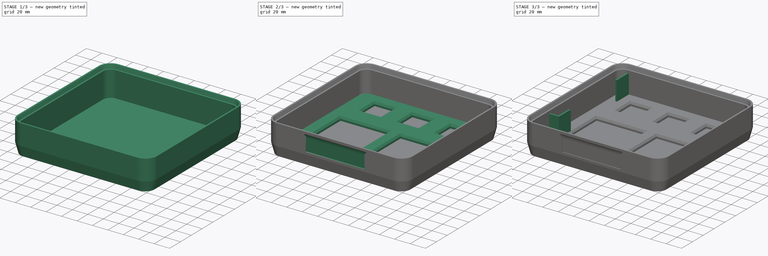
[diagram: build sequence overview — one tinted view per stage of 3, left to right]
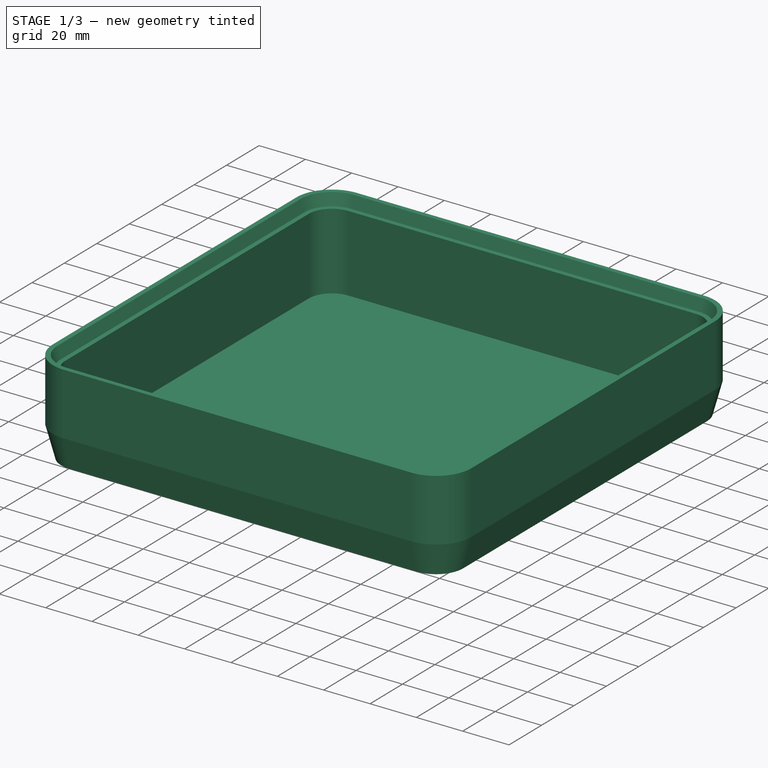
[diagram: stage 1 of 3 — iso view after this stage's code; geometry added in this stage tinted green]
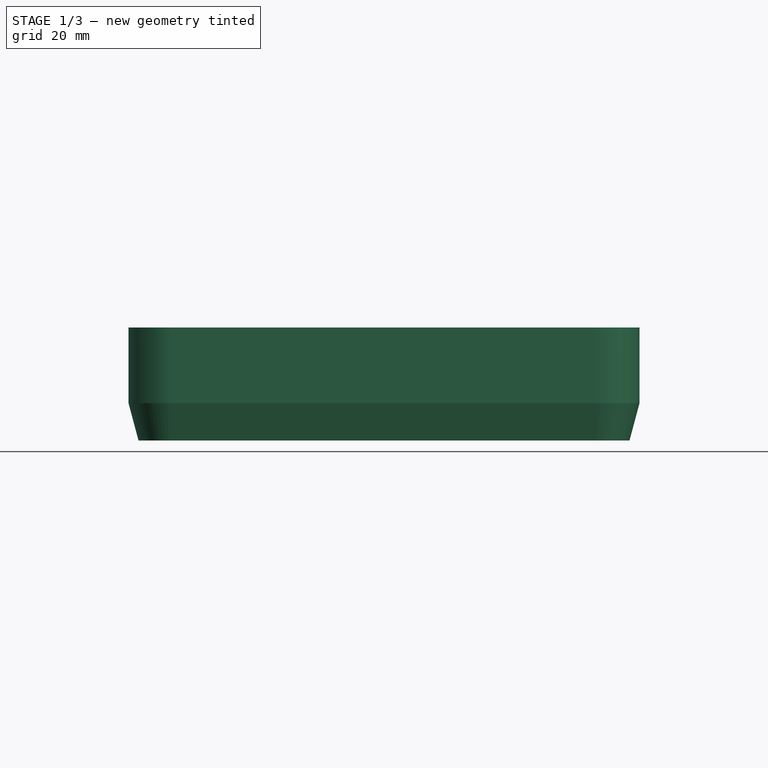
[diagram: stage 1 of 3 — front view after this stage's code; geometry added in this stage tinted green]
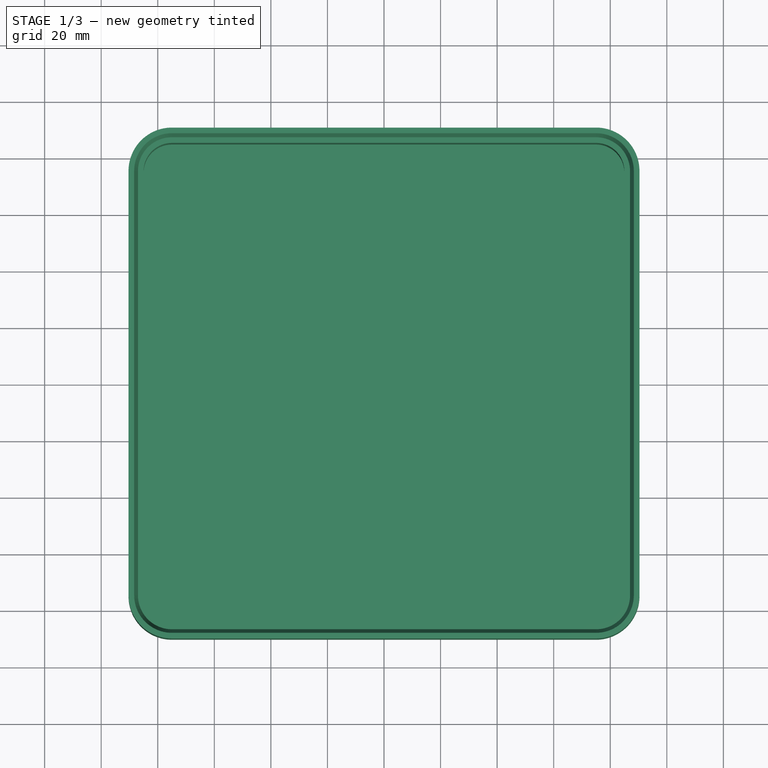
[diagram: stage 1 of 3 — top view after this stage's code; geometry added in this stage tinted green]
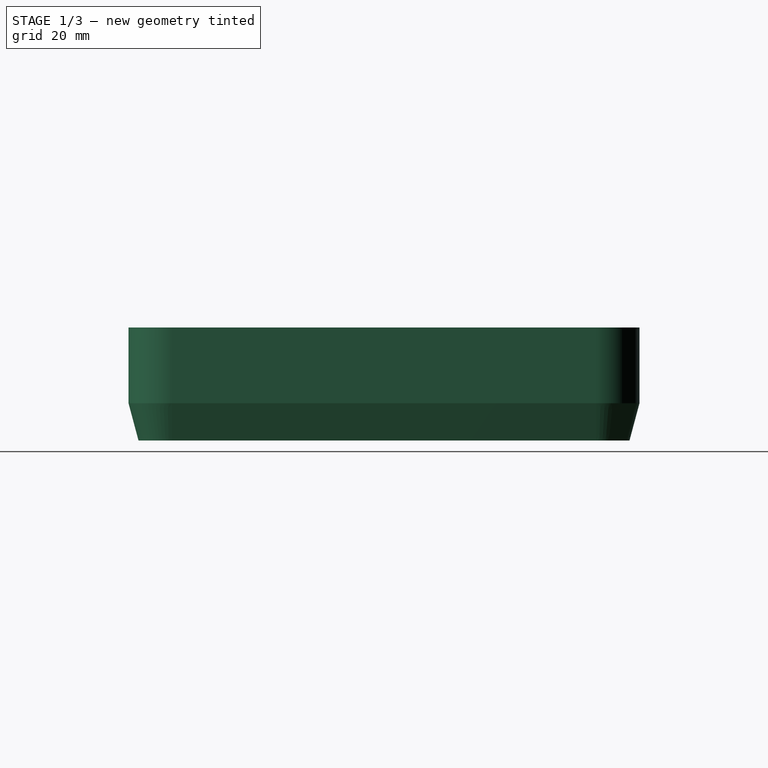
[diagram: stage 1 of 3 — right view after this stage's code; geometry added in this stage tinted green]
FCSTD DOCUMENT  (FreeCAD 1.0R39319 (Git))
Label: Box-slides
License: All rights reserved
LicenseURL: https://en.wikipedia.org/wiki/All_rights_reserved
objects: Sketcher::SketchObject×7, PartDesign::Pad×3, PartDesign::AdditivePipe×1, PartDesign::Chamfer×1, PartDesign::SubtractivePipe×1, PartDesign::Pocket×1, PartDesign::Body×1, Spreadsheet::Sheet×1
note: 36 computed .brp shape members not serialized (recipe doc carries the construction recipe); baked Part::Feature solids carry a one-line shape summary decoded from their .brp

FEATURE [Sketcher::SketchObject] Sketch
  ArcFitTolerance = 1e-06
  AttachmentSupport = -> [XZ_Plane]
  FullyConstrained = true
  MakeInternals = false
  MapMode = 5
  Placement = pos=(0,0,0) rot=(1,0,0;1.5708rad)
  sketch-geometry (8):
    g0: LineSegment StartX=85 StartY=0 StartZ=0 EndX=86.8 EndY=0 EndZ=0
    g1: LineSegment StartX=86.8 StartY=0 StartZ=0 EndX=90.3397 EndY=13.2105 EndZ=0
    g2: LineSegment StartX=90.3397 StartY=13.2105 StartZ=0 EndX=90.3397 EndY=40 EndZ=0
    g3: LineSegment StartX=90.3397 StartY=40 StartZ=0 EndX=88.3397 EndY=40 EndZ=0
    g4: LineSegment StartX=88.3397 StartY=40 StartZ=0 EndX=87 EndY=35 EndZ=0
    g5: LineSegment StartX=87 StartY=35 StartZ=0 EndX=85 EndY=35 EndZ=0
    g6: LineSegment StartX=85 StartY=35 StartZ=0 EndX=85 EndY=0 EndZ=0
    g7: GeomPoint X=90.3397 Y=26.6053 Z=0
  constraints (23):
    c: PointOnObject(g0,g-1)
    c: Coincident(g0,g1)
    c: Coincident(g1,g2)
    c: Vertical(g2)
    c: Coincident(g2,g3)
    c: Horizontal(g3)
    c: Coincident(g3,g4)
    c: Coincident(g4,g5)
    c: Horizontal(g5)
    c: Coincident(g5,g6)
    c: Vertical(g6)
    c: Horizontal(g0)
    c: Coincident(g0,g6)
    c: Parallel(g1,g4)
    c: DistanceY(g4,g3) = 5
    c: Angle(g-1,g1) = 1.309
    c: Equal(g3,g5)
    c: DistanceX(g3,g3) = 2
    c: DistanceY(g6,g6) = 35
    c: DistanceX(g0) = 85
    c: DistanceX(g0,g0) = 1.8
    c: Symmetric(g2,g2,g7)
    c: DistanceY(g7) = 26.6053
FEATURE [Sketcher::SketchObject] Sketch001
  ArcFitTolerance = 1e-06
  AttachmentSupport = -> [XY_Plane]
  FullyConstrained = false
  MakeInternals = false
  MapMode = 5
  sketch-geometry (20):
    g0: Circle [constr] CenterX=20 CenterY=20 CenterZ=0 NormalX=0 NormalY=0 NormalZ=1 AngleXU=0 Radius=11.75
    g1: Circle [constr] CenterX=20 CenterY=20 CenterZ=0 NormalX=0 NormalY=0 NormalZ=1 AngleXU=0 Radius=20
    g2: Circle [constr] CenterX=60 CenterY=60 CenterZ=0 NormalX=0 NormalY=0 NormalZ=1 AngleXU=0 Radius=11.75
    g3: Circle [constr] CenterX=60 CenterY=60 CenterZ=0 NormalX=0 NormalY=0 NormalZ=1 AngleXU=0 Radius=20
    g4: Circle [constr] CenterX=20 CenterY=60 CenterZ=0 NormalX=0 NormalY=0 NormalZ=1 AngleXU=0 Radius=11.75
    g5: Circle [constr] CenterX=20 CenterY=60 CenterZ=0 NormalX=0 NormalY=0 NormalZ=1 AngleXU=0 Radius=20
    g6: Circle [constr] CenterX=60 CenterY=20 CenterZ=0 NormalX=0 NormalY=0 NormalZ=1 AngleXU=0 Radius=11.75
    g7: Circle [constr] CenterX=60 CenterY=20 CenterZ=0 NormalX=0 NormalY=0 NormalZ=1 AngleXU=0 Radius=20
    g8: LineSegment StartX=-85 StartY=75 StartZ=0 EndX=-85 EndY=-75 EndZ=0
    g9: LineSegment StartX=-75 StartY=-85 StartZ=0 EndX=75 EndY=-85 EndZ=0
    g10: LineSegment StartX=85 StartY=-75 StartZ=0 EndX=85 EndY=75 EndZ=0
    g11: LineSegment StartX=75 StartY=85 StartZ=0 EndX=-75 EndY=85 EndZ=0
    g12: ArcOfCircle CenterX=-75 CenterY=75 CenterZ=0 NormalX=0 NormalY=0 NormalZ=1 AngleXU=0 Radius=10 StartAngle=1.5708 EndAngle=3.14159
    g13: GeomPoint [constr] X=-85 Y=85 Z=0
    g14: ArcOfCircle CenterX=75 CenterY=75 CenterZ=0 NormalX=0 NormalY=0 NormalZ=1 AngleXU=0 Radius=10 StartAngle=0 EndAngle=1.5708
    g15: GeomPoint [constr] X=85 Y=85 Z=0
    g16: ArcOfCircle CenterX=75 CenterY=-75 CenterZ=0 NormalX=0 NormalY=0 NormalZ=1 AngleXU=0 Radius=10 StartAngle=4.71239 EndAngle=6.28319
    g17: GeomPoint [constr] X=85 Y=-85 Z=0
    g18: ArcOfCircle CenterX=-75 CenterY=-75 CenterZ=0 NormalX=0 NormalY=0 NormalZ=1 AngleXU=0 Radius=10 StartAngle=3.14159 EndAngle=4.71239
    g19: GeomPoint [constr] X=-85 Y=-85 Z=0
  constraints (45):
    c: Diameter(g0) = 23.5
    c: Coincident(g1,g0)
    c: Diameter(g1) = 40
    c: Coincident(g3,g2)
    c: Coincident(g5,g4)
    c: Tangent(g5,g1)
    c: Tangent(g5,g3)
    c: Tangent(g3,g7)
    c: Tangent(g1,g7)
    c: Vertical(g4,g0)
    c: Horizontal(g4,g2)
    c: Equal(g3,g7)
    c: Equal(g7,g1)
    c: Equal(g1,g5)
    c: Equal(g6,g2)
    c: Equal(g2,g4)
    c: Equal(g4,g0)
    c: Tangent(g1,g-2)
    c: Vertical(g8)
    c: Vertical(g10)
    c: Horizontal(g9)
    c: Horizontal(g11)
    c: Symmetric(g13,g17,g-1)
    c: PointOnObject(g13,g8)
    c: PointOnObject(g13,g11)
    c: Tangent(g8,g12) = -1.5708
    c: Tangent(g11,g12) = -1.5708
    c: PointOnObject(g15,g11)
    c: PointOnObject(g15,g10)
    c: Tangent(g11,g14) = -1.5708
    c: Tangent(g10,g14) = -1.5708
    c: PointOnObject(g17,g10)
    c: PointOnObject(g17,g9)
    c: Tangent(g10,g16) = -1.5708
    c: Tangent(g9,g16) = -1.5708
    c: PointOnObject(g19,g9)
    c: PointOnObject(g19,g8)
    c: Tangent(g9,g18) = -1.5708
    c: Tangent(g8,g18) = -1.5708
    c: Equal(g14,g12)
    c: Equal(g12,g18)
    c: Equal(g18,g16)
    c: Radius(g14) = 10
    c: Equal(g10,g11)
    c: Distance(g-1,g10) = 85
FEATURE [PartDesign::AdditivePipe] AdditivePipe  label="seite"
  AuxilleryCurvelinear = true
  AuxillerySpineTangent = false
  Binormal = (0,0,0)
  Mode = 0
  Placement = pos=(0,0,0) rot=(1,0,0;1.5708rad)
  Profile = -> Sketch
  Refine = true
  Spine = -> Sketch001
  SpineTangent = false
  Suppressed = false
  Transformation = 0
  Transition = 0
FEATURE [Sketcher::SketchObject] Sketch002
  ArcFitTolerance = 1e-06
  AttachmentOffset = pos=(0,0,2) rot=(0,0,1;0rad)
  AttachmentSupport = -> [XY_Plane]
  FullyConstrained = true
  MakeInternals = false
  MapMode = 5
  Placement = pos=(0,0,2) rot=(0,0,1;0rad)
  sketch-geometry (41):
    g0: LineSegment StartX=-85 StartY=75 StartZ=0 EndX=-85 EndY=-75 EndZ=0
    g1: LineSegment StartX=-75 StartY=-85 StartZ=0 EndX=75 EndY=-85 EndZ=0
    g2: LineSegment StartX=85 StartY=-75 StartZ=0 EndX=85 EndY=75 EndZ=0
    g3: LineSegment StartX=75 StartY=85 StartZ=0 EndX=-75 EndY=85 EndZ=0
    g4: ArcOfCircle CenterX=-75 CenterY=75 CenterZ=0 NormalX=0 NormalY=0 NormalZ=1 AngleXU=0 Radius=10 StartAngle=1.5708 EndAngle=3.14159
    g5: GeomPoint [constr] X=-85 Y=85 Z=0
    g6: ArcOfCircle CenterX=75 CenterY=75 CenterZ=0 NormalX=0 NormalY=0 NormalZ=1 AngleXU=0 Radius=10 StartAngle=3e-16 EndAngle=1.5708
    g7: GeomPoint [constr] X=85 Y=85 Z=0
    g8: ArcOfCircle CenterX=75 CenterY=-75 CenterZ=0 NormalX=0 NormalY=0 NormalZ=1 AngleXU=0 Radius=10 StartAngle=4.71239 EndAngle=6.28319
    g9: GeomPoint [constr] X=85 Y=-85 Z=0
    g10: ArcOfCircle CenterX=-75 CenterY=-75 CenterZ=0 NormalX=0 NormalY=0 NormalZ=1 AngleXU=0 Radius=10 StartAngle=3.14159 EndAngle=4.71239
    g11: GeomPoint [constr] X=-85 Y=-85 Z=0
    g12: LineSegment StartX=-70.3333 StartY=20 StartZ=0 EndX=-70.3333 EndY=-60 EndZ=0
    g13: LineSegment StartX=-70.3333 StartY=-60 StartZ=0 EndX=-7.33333 EndY=-60 EndZ=0
    g14: LineSegment StartX=-7.33333 StartY=-60 StartZ=0 EndX=-7.33333 EndY=20 EndZ=0
    g15: LineSegment StartX=-7.33333 StartY=20 StartZ=0 EndX=-70.3333 EndY=20 EndZ=0
    g16: LineSegment [constr] StartX=-70.3333 StartY=20 StartZ=0 EndX=-70.3333 EndY=45 EndZ=0
    g17: LineSegment [constr] StartX=-70.3333 StartY=-60 StartZ=0 EndX=-70.3333 EndY=-85 EndZ=0
    g18: LineSegment StartX=-62 StartY=71 StartZ=0 EndX=-62 EndY=45 EndZ=0
    g19: LineSegment StartX=-62 StartY=45 StartZ=0 EndX=-36 EndY=45 EndZ=0
    g20: LineSegment StartX=-36 StartY=45 StartZ=0 EndX=-36 EndY=71 EndZ=0
    g21: LineSegment StartX=-36 StartY=71 StartZ=0 EndX=-62 EndY=71 EndZ=0
    g22: LineSegment StartX=7.33333 StartY=20 StartZ=0 EndX=7.33333 EndY=-60 EndZ=0
    g23: LineSegment StartX=7.33333 StartY=-60 StartZ=0 EndX=70.3333 EndY=-60 EndZ=0
    g24: LineSegment StartX=70.3333 StartY=-60 StartZ=0 EndX=70.3333 EndY=20 EndZ=0
    g25: LineSegment StartX=70.3333 StartY=20 StartZ=0 EndX=7.33333 EndY=20 EndZ=0
    g26: LineSegment StartX=36 StartY=71 StartZ=0 EndX=36 EndY=45 EndZ=0
    g27: LineSegment StartX=36 StartY=45 StartZ=0 EndX=62 EndY=45 EndZ=0
    g28: LineSegment StartX=62 StartY=45 StartZ=0 EndX=62 EndY=71 EndZ=0
    g29: LineSegment StartX=62 StartY=71 StartZ=0 EndX=36 EndY=71 EndZ=0
    g30: LineSegment [constr] StartX=-85 StartY=20 StartZ=0 EndX=-70.3333 EndY=20 EndZ=0
    g31: LineSegment [constr] StartX=-7.33333 StartY=20 StartZ=0 EndX=7.33333 EndY=20 EndZ=0
    g32: LineSegment [constr] StartX=70.3333 StartY=20 StartZ=0 EndX=85 EndY=20 EndZ=0
    g33: LineSegment StartX=-13 StartY=71 StartZ=0 EndX=-13 EndY=45 EndZ=0
    g34: LineSegment StartX=-13 StartY=45 StartZ=0 EndX=13 EndY=45 EndZ=0
    g35: LineSegment StartX=13 StartY=45 StartZ=0 EndX=13 EndY=71 EndZ=0
    g36: LineSegment StartX=13 StartY=71 StartZ=0 EndX=-13 EndY=71 EndZ=0
    g37: LineSegment [constr] StartX=-62 StartY=45 StartZ=0 EndX=-85 EndY=45 EndZ=0
    g38: LineSegment [constr] StartX=-36 StartY=45 StartZ=0 EndX=-13 EndY=45 EndZ=0
    g39: LineSegment [constr] StartX=13 StartY=45 StartZ=0 EndX=36 EndY=45 EndZ=0
    g40: LineSegment [constr] StartX=62 StartY=45 StartZ=0 EndX=85 EndY=45 EndZ=0
  constraints (110):
    c: Vertical(g0)
    c: Vertical(g2)
    c: Horizontal(g1)
    c: Horizontal(g3)
    c: Symmetric(g5,g9,g-1)
    c: PointOnObject(g5,g0)
    c: PointOnObject(g5,g3)
    c: Tangent(g0,g4) = -1.5708
    c: Tangent(g3,g4) = -1.5708
    c: PointOnObject(g7,g3)
    c: PointOnObject(g7,g2)
    c: Tangent(g3,g6) = -1.5708
    c: Tangent(g2,g6) = -1.5708
    c: PointOnObject(g9,g2)
    c: PointOnObject(g9,g1)
    c: Tangent(g2,g8) = -1.5708
    c: Tangent(g1,g8) = -1.5708
    c: PointOnObject(g11,g1)
    c: PointOnObject(g11,g0)
    c: Tangent(g1,g10) = -1.5708
    c: Tangent(g0,g10) = -1.5708
    c: Equal(g6,g4)
    c: Equal(g4,g10)
    c: Equal(g10,g8)
    c: Radius(g6) = 10
    c: Equal(g2,g3)
    c: Distance(g-1,g2) = 85
    c: Coincident(g12,g13)
    c: Coincident(g13,g14)
    c: Coincident(g14,g15)
    c: Coincident(g15,g12)
    c: Vertical(g12)
    c: Vertical(g14)
    c: Horizontal(g13)
    c: Horizontal(g15)
    c: DistanceX(g15,g15) = 63
    c: DistanceY(g12,g12) = 80
    c: Coincident(g12,g16)
    c: Vertical(g16)
    c: Coincident(g12,g17)
    c: Vertical(g17)
    c: Equal(g17,g16)
    c: DistanceY(g17,g16) = 130
    c: PointOnObject(g17,g1)
    c: Coincident(g18,g19)
    c: Coincident(g19,g20)
    c: Coincident(g20,g21)
    c: Coincident(g21,g18)
    c: Vertical(g18)
    c: Vertical(g20)
    c: Horizontal(g19)
    c: Horizontal(g21)
    c: Equal(g20,g21)
    c: DistanceX(g21,g21) = 26
    c: Horizontal(g16,g18)
    c: Coincident(g22,g23)
    c: Coincident(g23,g24)
    c: Coincident(g24,g25)
    c: Coincident(g25,g22)
    c: Vertical(g22)
    c: Vertical(g24)
    c: Horizontal(g23)
    c: Horizontal(g25)
    c: Coincident(g26,g27)
    c: Coincident(g27,g28)
    c: Coincident(g28,g29)
    c: Coincident(g29,g26)
    c: Vertical(g26)
    c: Vertical(g28)
    c: Horizontal(g27)
    c: Horizontal(g29)
    c: Equal(g28,g29)
    c: Equal(g25,g15)
    c: Equal(g14,g22)
    c: PointOnObject(g30,g0)
    c: Horizontal(g30)
    c: Coincident(g14,g31)
    c: Coincident(g31,g22)
    c: Horizontal(g31)
    c: Coincident(g24,g32)
    c: PointOnObject(g32,g2)
    c: Horizontal(g32)
    c: Equal(g32,g31)
    c: Equal(g31,g30)
    c: Coincident(g30,g12)
    c: Horizontal(g19,g26)
    c: Coincident(g33,g34)
    c: Coincident(g34,g35)
    c: Coincident(g35,g36)
    c: Coincident(g36,g33)
    c: Vertical(g33)
    c: Vertical(g35)
    c: Horizontal(g36)
    c: Equal(g35,g36)
    c: Horizontal(g33,g19)
    c: Symmetric(g34,g33,g-2)
    c: Coincident(g18,g37)
    c: PointOnObject(g37,g0)
    c: Horizontal(g37)
    c: Coincident(g19,g38)
    c: Coincident(g38,g33)
    c: Coincident(g34,g39)
    c: Coincident(g39,g26)
    c: Coincident(g27,g40)
    c: PointOnObject(g40,g2)
    c: Horizontal(g40)
    c: Equal(g37,g38)
    c: Equal(g38,g39)
    c: Equal(g29,g36)
    c: Equal(g36,g21)
FEATURE [PartDesign::Pad] Pad  label="boden"
  BaseFeature = -> AdditivePipe
  Direction = (0,0,1)
  Length = 2
  Length2 = 10
  Placement = pos=(0,0,0) rot=(1,0,0;1.5708rad)
  Profile = -> Sketch001
  ReferenceAxis = -> Sketch001 [N_Axis]
  Refine = true
  Suppressed = false
  Type = 0
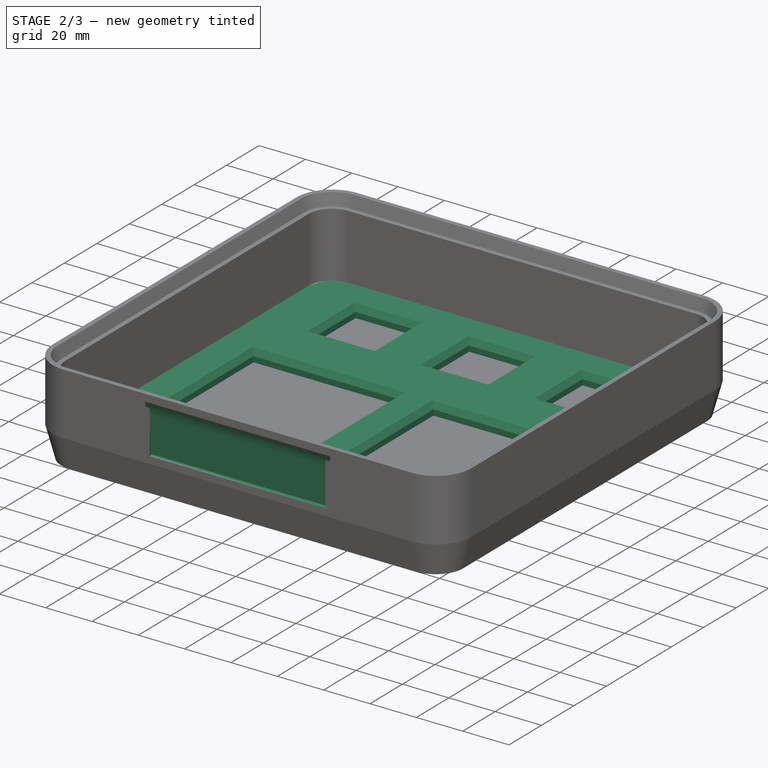
[diagram: stage 2 of 3 — iso view after this stage's code; geometry added in this stage tinted green]
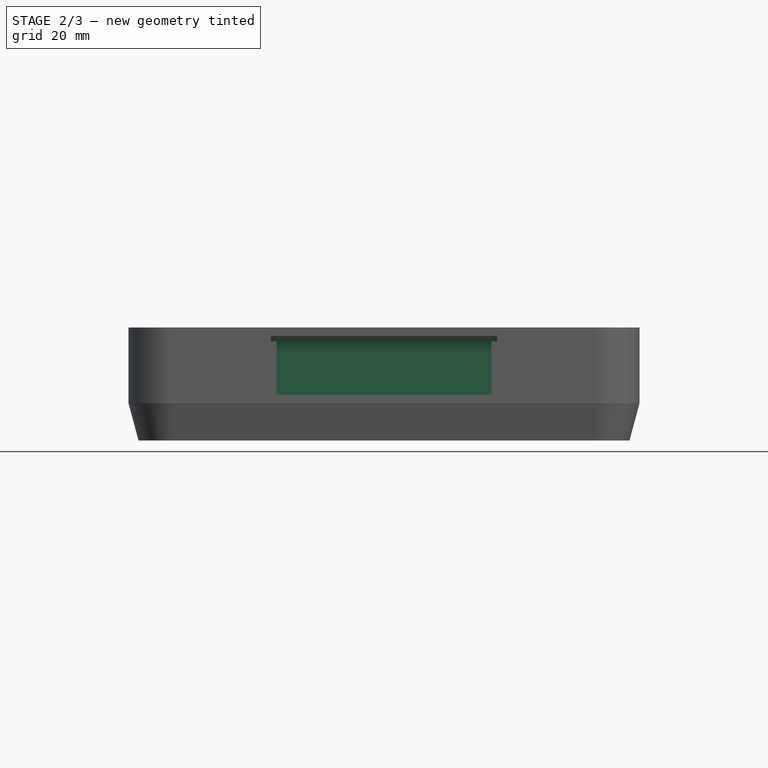
[diagram: stage 2 of 3 — front view after this stage's code; geometry added in this stage tinted green]
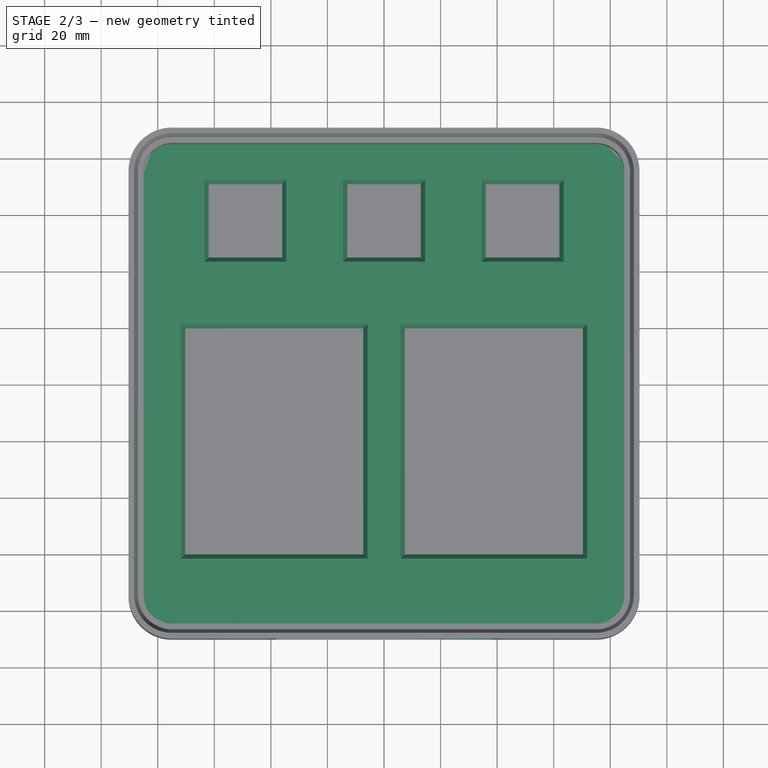
[diagram: stage 2 of 3 — top view after this stage's code; geometry added in this stage tinted green]
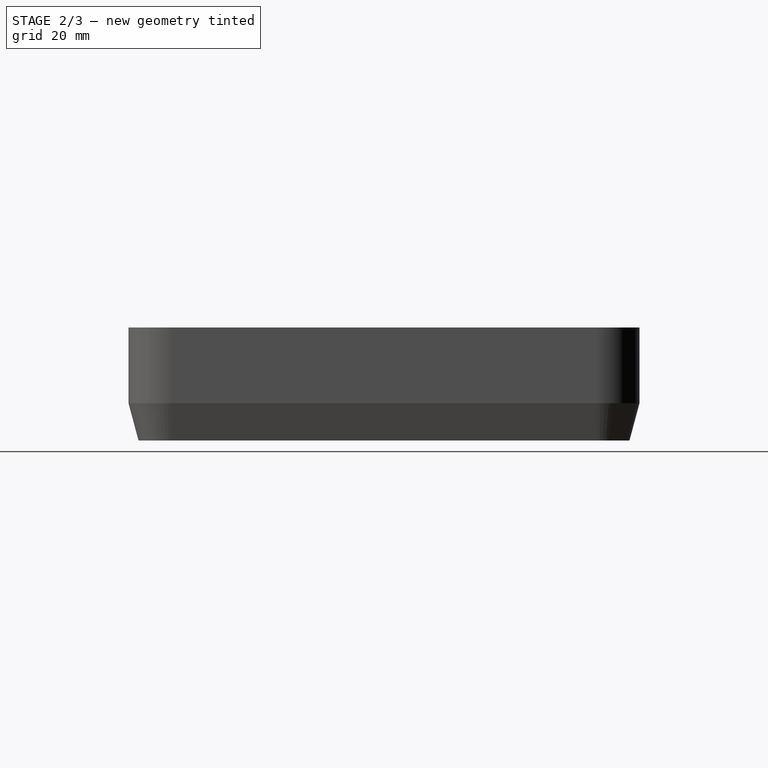
[diagram: stage 2 of 3 — right view after this stage's code; geometry added in this stage tinted green]
FEATURE [PartDesign::Pad] Pad001  label="platzierung"
  BaseFeature = -> Pad
  Direction = (0,0,1)
  Length = 5
  Length2 = 10
  Placement = pos=(0,0,0) rot=(1,0,0;1.5708rad)
  Profile = -> Sketch002
  ReferenceAxis = -> Sketch002 [N_Axis]
  Refine = true
  Suppressed = false
  Type = 0
FEATURE [PartDesign::Chamfer] Chamfer
  Angle = 60
  Base = -> Pad001 [Edge93,Edge96,Edge95,Edge94,Edge92,Edge89,Edge91,Edge90,Edge104,Edge101,Edge103,Edge102,Edge100,Edge99,Edge98,Edge97,Edge107,Edge106,Edge108,Edge105]
  BaseFeature = -> Pad001
  ChamferType = 2
  FlipDirection = false
  Placement = pos=(0,0,0) rot=(1,0,0;1.5708rad)
  Refine = true
  Size = 1.5
  Size2 = 1
  SupportTransform = false
  Suppressed = false
  UseAllEdges = false
FEATURE [Sketcher::SketchObject] Sketch003
  ArcFitTolerance = 1e-06
  AttachmentSupport = -> [YZ_Plane]
  FullyConstrained = true
  MakeInternals = false
  MapMode = 5
  Placement = pos=(0,0,0) rot=(0.57735,0.57735,0.57735;2.0944rad)
  expr: Constraints[5] = <<tab>>.H_schild
  sketch-geometry (2):
    g0: ArcOfCircle CenterX=-98.5 CenterY=31.2152 CenterZ=0 NormalX=0 NormalY=0 NormalZ=1 AngleXU=0 Radius=10 StartAngle=2e-16 EndAngle=1.0472
    g1: LineSegment StartX=-88.5 StartY=31.2152 StartZ=0 EndX=-88.5 EndY=16.2152 EndZ=0
  constraints (7):
    c: Tangent(g0,g1) = 1.5708
    c: Vertical(g1)
    c: DistanceY(g1,g1) = 15
    c: Radius(g0) = 10
    c: DistanceX(g0,g0) = 5
    c: DistanceY(g1) = 16.2152
    c: DistanceX(g1) = -88.5
FEATURE [Sketcher::SketchObject] Sketch004
  ArcFitTolerance = 1e-06
  AttachmentOffset = pos=(0,0,16.2152) rot=(0,0,1;0rad)
  AttachmentSupport = -> [XY_Plane]
  FullyConstrained = true
  MakeInternals = false
  MapMode = 5
  Placement = pos=(0,0,16.2152) rot=(0,0,1;0rad)
  expr: .AttachmentOffset.Base.z = <<tab>>.H_schild
  sketch-geometry (9):
    g0: LineSegment StartX=-40 StartY=-88.5 StartZ=0 EndX=40 EndY=-88.5 EndZ=0
    g1: LineSegment StartX=40 StartY=-88.5 StartZ=0 EndX=40 EndY=-89.5 EndZ=0
    g2: LineSegment StartX=38 StartY=-89.5 StartZ=0 EndX=40 EndY=-89.5 EndZ=0
    g3: LineSegment StartX=38 StartY=-89.5 StartZ=0 EndX=38 EndY=-91.5 EndZ=0
    g4: LineSegment StartX=38 StartY=-91.5 StartZ=0 EndX=-38 EndY=-91.5 EndZ=0
    g5: LineSegment StartX=-38 StartY=-91.5 StartZ=0 EndX=-38 EndY=-89.5 EndZ=0
    g6: LineSegment StartX=-38 StartY=-89.5 StartZ=0 EndX=-40 EndY=-89.5 EndZ=0
    g7: LineSegment StartX=-40 StartY=-89.5 StartZ=0 EndX=-40 EndY=-88.5 EndZ=0
    g8: GeomPoint X=0 Y=-88.5 Z=0
  constraints (25):
    c: Horizontal(g0)
    c: Coincident(g0,g1)
    c: Vertical(g1)
    c: Horizontal(g2)
    c: Vertical(g3)
    c: Coincident(g3,g4)
    c: Horizontal(g4)
    c: Coincident(g4,g5)
    c: Vertical(g5)
    c: Coincident(g5,g6)
    c: Horizontal(g6)
    c: Coincident(g6,g7)
    c: Vertical(g7)
    c: Coincident(g0,g7)
    c: DistanceX(g6,g6) = 2
    c: DistanceY(g7,g7) = 1
    c: Equal(g5,g6)
    c: Equal(g6,g2)
    c: Equal(g2,g3)
    c: DistanceY(g0) = -88.5
    c: PointOnObject(g8,g-2)
    c: Symmetric(g0,g0,g8)
    c: DistanceX(g0,g0) = 80
    c: Coincident(g1,g2)
    c: Coincident(g2,g3)
FEATURE [PartDesign::SubtractivePipe] SubtractivePipe  label="schild"
  AuxilleryCurvelinear = true
  AuxillerySpineTangent = false
  BaseFeature = -> Chamfer
  Binormal = (0,0,0)
  Mode = 0
  Placement = pos=(0,0,0) rot=(1,0,0;1.5708rad)
  Profile = -> Sketch004
  Refine = true
  Spine = -> Sketch003
  SpineTangent = false
  Suppressed = false
  Transformation = 0
  Transition = 0
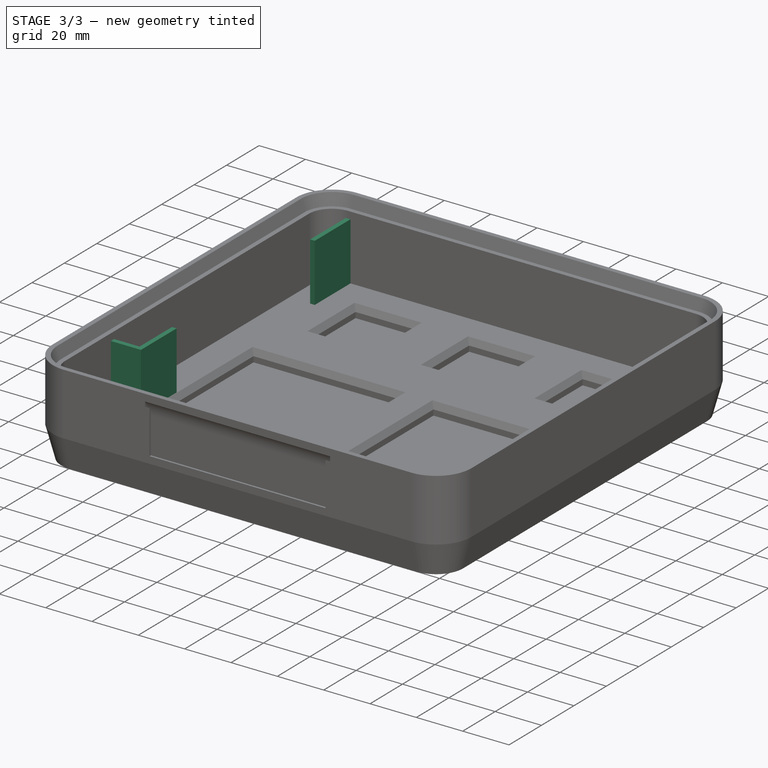
[diagram: stage 3 of 3 — iso view after this stage's code; geometry added in this stage tinted green]
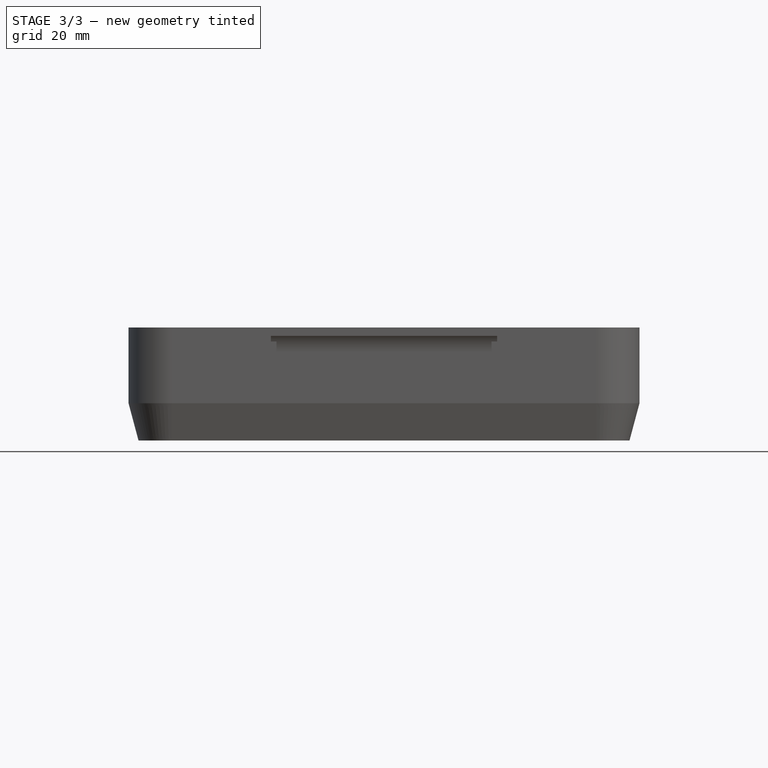
[diagram: stage 3 of 3 — front view after this stage's code; geometry added in this stage tinted green]
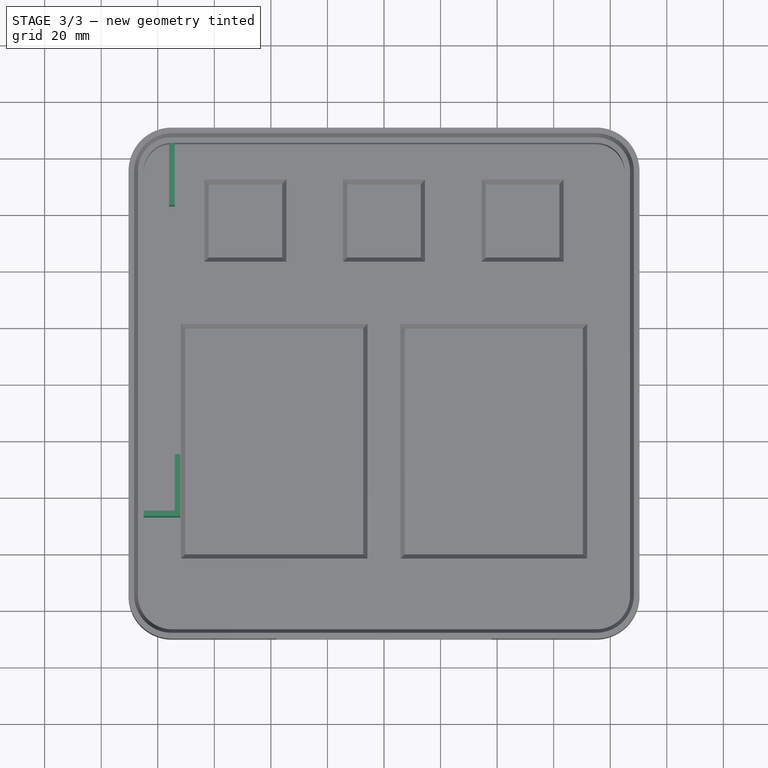
[diagram: stage 3 of 3 — top view after this stage's code; geometry added in this stage tinted green]
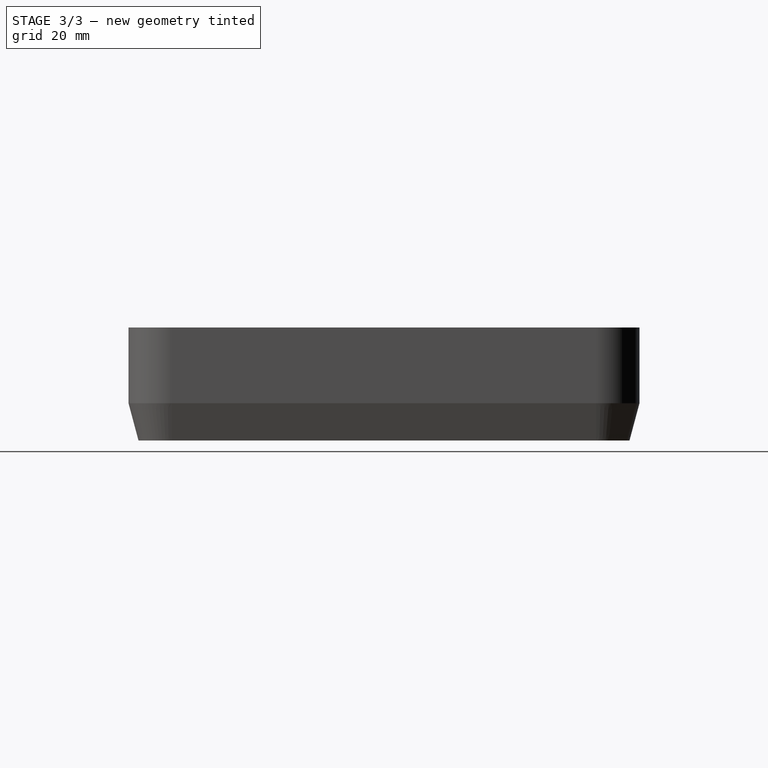
[diagram: stage 3 of 3 — right view after this stage's code; geometry added in this stage tinted green]
FEATURE [Sketcher::SketchObject] Sketch005
  ArcFitTolerance = 1e-06
  AttachmentOffset = pos=(0,0,16.2152) rot=(0,0,1;0rad)
  AttachmentSupport = -> [XY_Plane]
  FullyConstrained = true
  MakeInternals = false
  MapMode = 5
  Placement = pos=(0,0,16.2152) rot=(0,0,1;0rad)
  expr: .AttachmentOffset.Base.z = <<tab>>.H_schild
  sketch-geometry (5):
    g0: LineSegment StartX=-40 StartY=-88.5 StartZ=0 EndX=40 EndY=-88.5 EndZ=0
    g1: LineSegment StartX=40 StartY=-88.5 StartZ=0 EndX=40 EndY=-89.5 EndZ=0
    g2: LineSegment StartX=40 StartY=-89.5 StartZ=0 EndX=-40 EndY=-89.5 EndZ=0
    g3: LineSegment StartX=-40 StartY=-89.5 StartZ=0 EndX=-40 EndY=-88.5 EndZ=0
    g4: GeomPoint X=0 Y=-88.5 Z=0
  constraints (13):
    c: Horizontal(g0)
    c: Coincident(g0,g1)
    c: Vertical(g1)
    c: Horizontal(g2)
    c: Coincident(g2,g3)
    c: Vertical(g3)
    c: Coincident(g0,g3)
    c: DistanceY(g3,g3) = 1
    c: DistanceY(g0) = -88.5
    c: PointOnObject(g4,g-2)
    c: Symmetric(g0,g0,g4)
    c: DistanceX(g0,g0) = 80
    c: Coincident(g1,g2)
FEATURE [PartDesign::Pocket] Pocket  label="schild_u"
  BaseFeature = -> SubtractivePipe
  Direction = (0,0,-1)
  Length = 1
  Length2 = 5
  Placement = pos=(0,0,0) rot=(1,0,0;1.5708rad)
  Profile = -> Sketch005
  ReferenceAxis = -> Sketch005 [N_Axis]
  Refine = true
  Suppressed = false
  Type = 0
FEATURE [Sketcher::SketchObject] Sketch007
  ArcFitTolerance = 1e-06
  AttachmentOffset = pos=(0,0,2) rot=(0,0,1;0rad)
  AttachmentSupport = -> [XY_Plane]
  FullyConstrained = true
  MakeInternals = false
  MapMode = 5
  Placement = pos=(0,0,2) rot=(0,0,1;0rad)
  sketch-geometry (10):
    g0: LineSegment StartX=-74 StartY=85 StartZ=0 EndX=-74 EndY=63 EndZ=0
    g1: LineSegment StartX=-74 StartY=63 StartZ=0 EndX=-76 EndY=63 EndZ=0
    g2: LineSegment StartX=-76 StartY=63 StartZ=0 EndX=-76 EndY=85 EndZ=0
    g3: LineSegment StartX=-76 StartY=85 StartZ=0 EndX=-74 EndY=85 EndZ=0
    g4: LineSegment StartX=-72 StartY=-47 StartZ=0 EndX=-72 EndY=-25 EndZ=0
    g5: LineSegment StartX=-72 StartY=-25 StartZ=0 EndX=-74 EndY=-25 EndZ=0
    g6: LineSegment StartX=-74 StartY=-25 StartZ=0 EndX=-74 EndY=-45 EndZ=0
    g7: LineSegment StartX=-72 StartY=-47 StartZ=0 EndX=-85 EndY=-47 EndZ=0
    g8: LineSegment StartX=-74 StartY=-45 StartZ=0 EndX=-85 EndY=-45 EndZ=0
    g9: LineSegment StartX=-85 StartY=-45 StartZ=0 EndX=-85 EndY=-47 EndZ=0
  constraints (30):
    c: Vertical(g0)
    c: Coincident(g0,g1)
    c: Horizontal(g1)
    c: Coincident(g1,g2)
    c: Vertical(g2)
    c: Coincident(g2,g3)
    c: Horizontal(g3)
    c: Coincident(g0,g3)
    c: Vertical(g4)
    c: Coincident(g4,g5)
    c: Horizontal(g5)
    c: Coincident(g5,g6)
    c: Vertical(g6)
    c: DistanceX(g5,g5) = 2
    c: Equal(g5,g1)
    c: Equal(g2,g4)
    c: DistanceY(g2) = 85
    c: Coincident(g4,g7)
    c: Horizontal(g7)
    c: Coincident(g6,g8)
    c: Horizontal(g8)
    c: Coincident(g8,g9)
    c: Coincident(g9,g7)
    c: Vertical(g9)
    c: Equal(g9,g5)
    c: DistanceX(g8,g8) = 11
    c: DistanceY(g6,g6) = 20
    c: DistanceX(g7) = -85
    c: Vertical(g0,g5)
    c: DistanceY(g8,g2) = 130
FEATURE [PartDesign::Pad] Pad002  label="fach"
  BaseFeature = -> Pocket
  Direction = (0,0,1)
  Length = 30
  Length2 = 10
  Placement = pos=(0,0,0) rot=(1,0,0;1.5708rad)
  Profile = -> Sketch007
  ReferenceAxis = -> Sketch007 [N_Axis]
  Refine = true
  Suppressed = false
  Type = 0
FEATURE [PartDesign::Body] Body
  AllowCompound = false
  Group = -> [Sketch,Sketch001,AdditivePipe,Sketch002,Pad,Pad001,Chamfer,Sketch003,Sketch004,SubtractivePipe,Sketch005,Pocket,Sketch007,Pad002]
  Origin = -> Origin
  Tip = -> Pad002
FEATURE [Spreadsheet::Sheet] Spreadsheet  label="tab"
  cells = A1='H_schild; B1(H_schild)==26.6053 - B_schild / 2; A2='B_schild; B2(B_schild)=20.7802
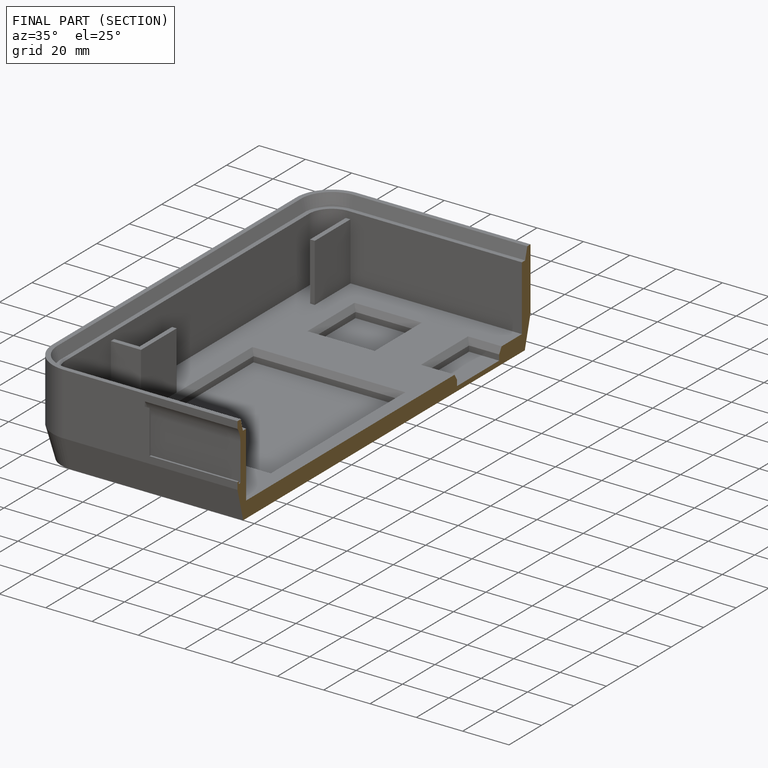
[diagram: finished part — half-section view (interior)]
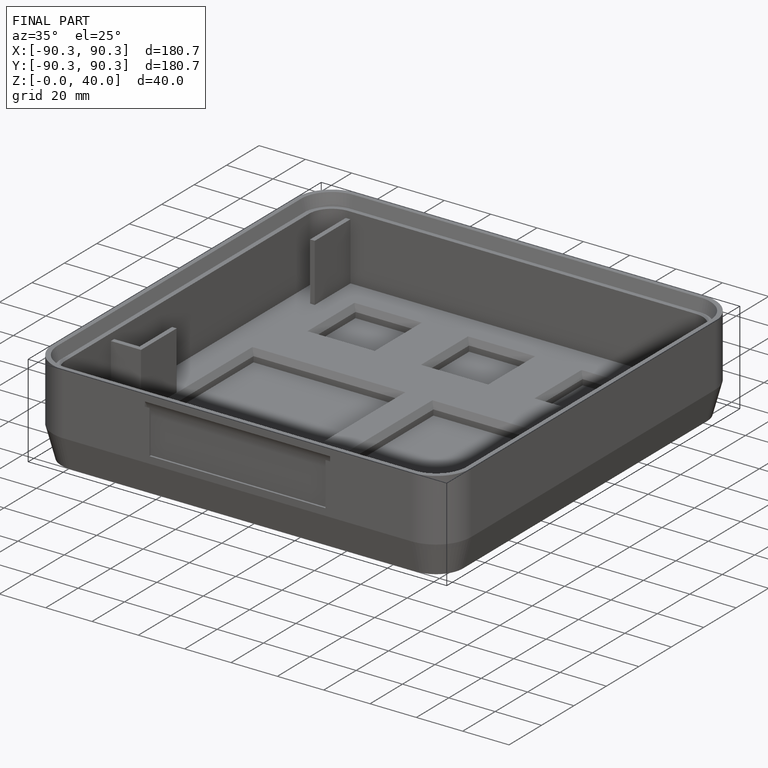
[diagram: finished part — iso view with bounding-box wireframe]
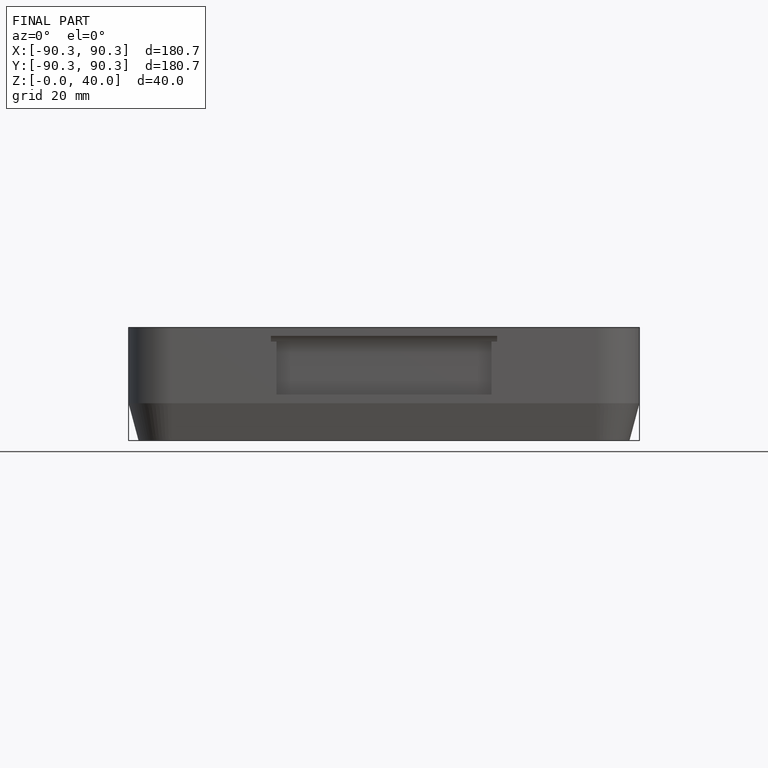
[diagram: finished part — front view with bounding-box wireframe]
